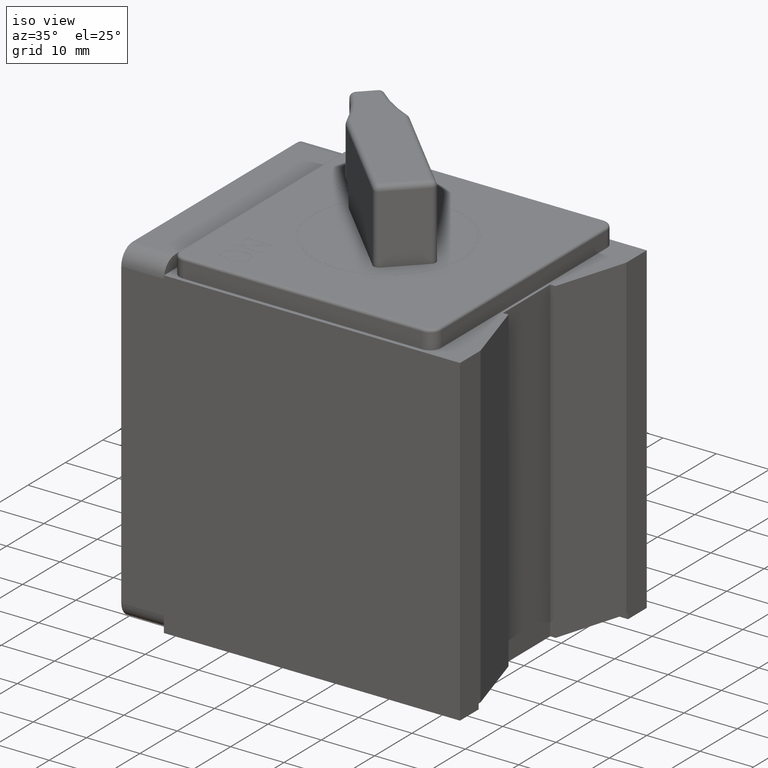
[diagram: clean part render]
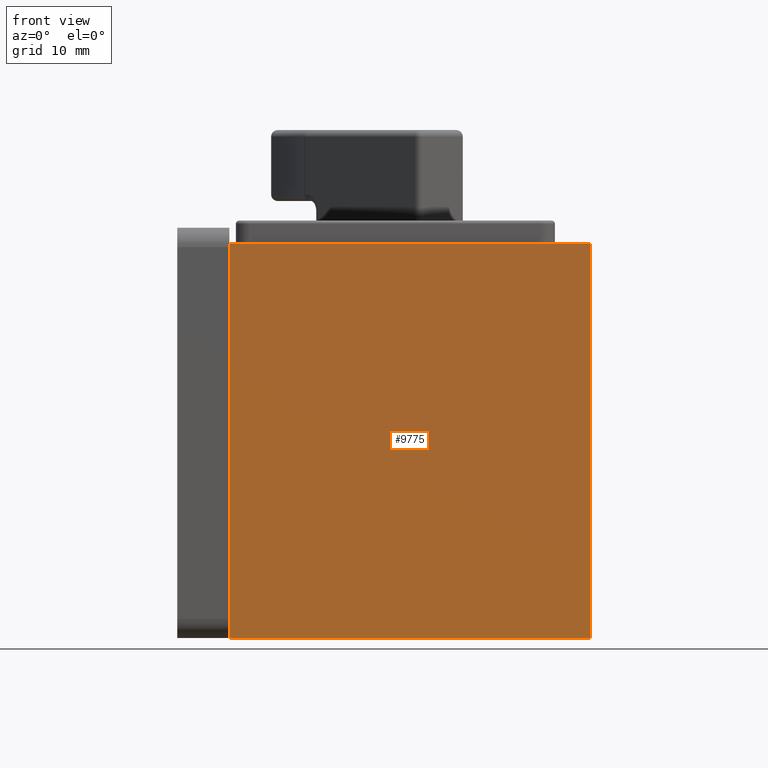
[diagram: tour spotlight — one face highlighted and labeled with its STEP entity id]
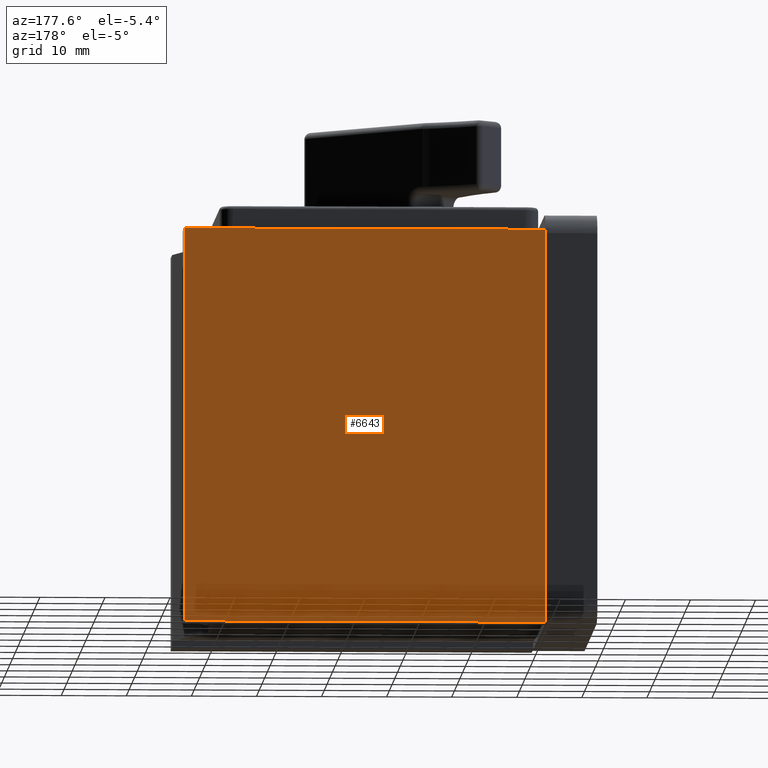
[diagram: tour spotlight — one face highlighted and labeled with its STEP entity id]
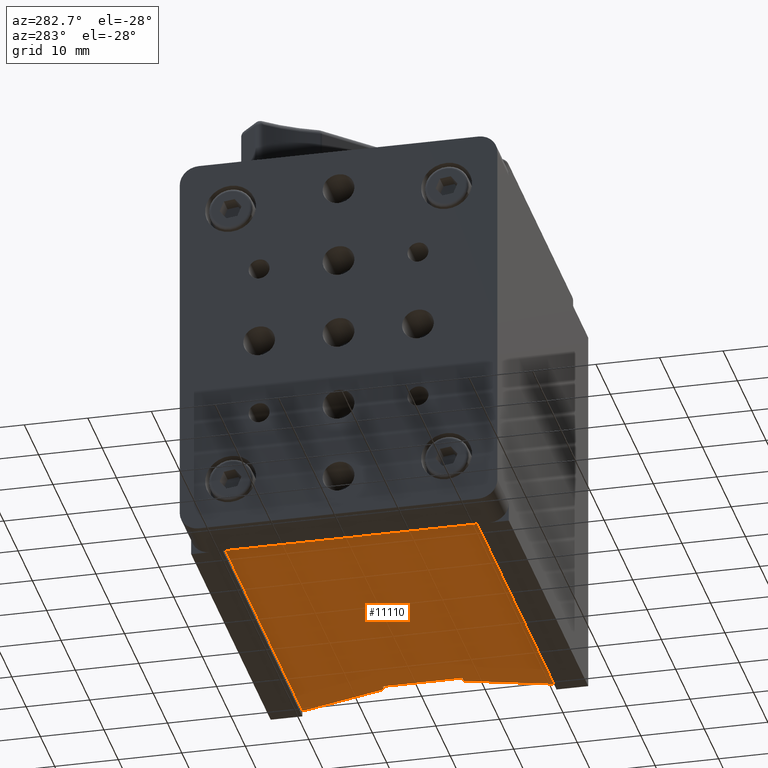
[diagram: tour spotlight — one face highlighted and labeled with its STEP entity id]
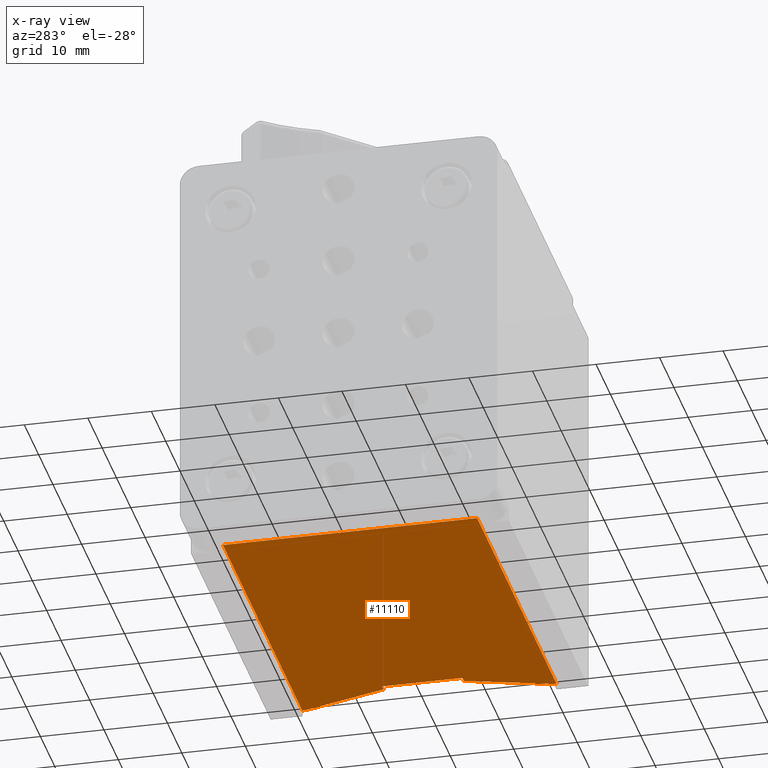
[diagram: x-ray of the same camera — body ghosted, this tour face saturated]
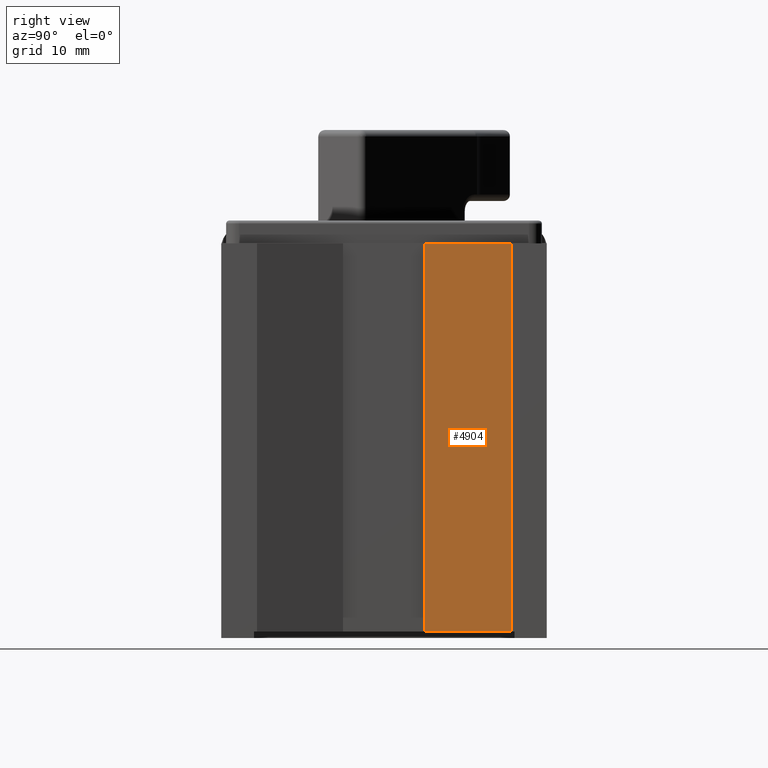
[diagram: tour spotlight — one face highlighted and labeled with its STEP entity id]
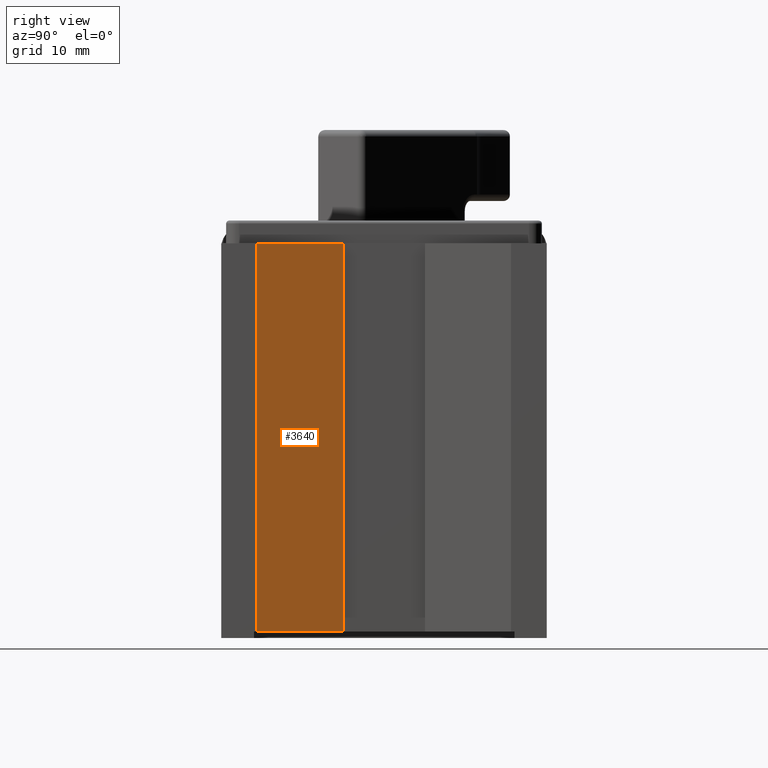
[diagram: tour spotlight — one face highlighted and labeled with its STEP entity id]
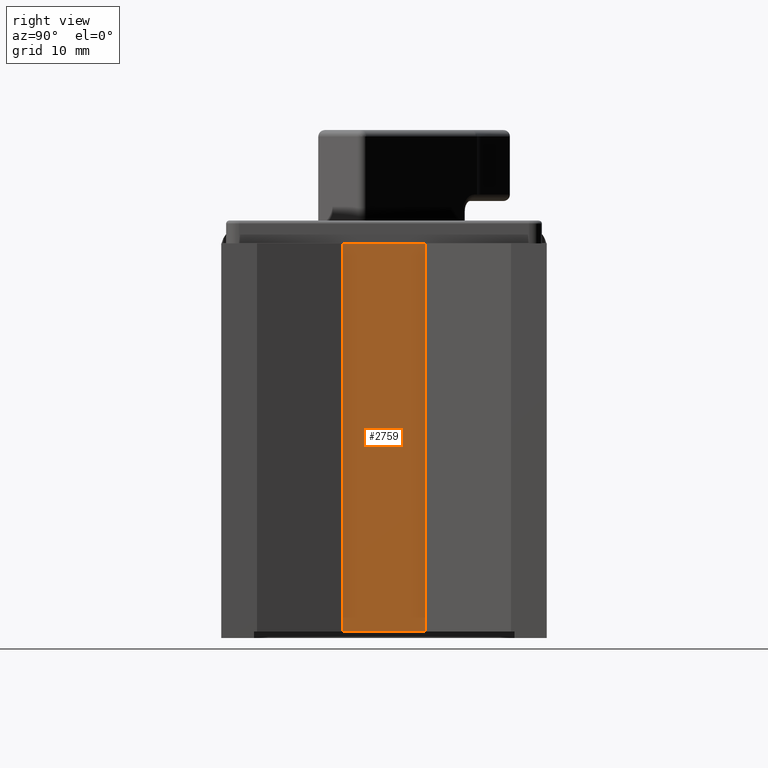
[diagram: tour spotlight — one face highlighted and labeled with its STEP entity id]
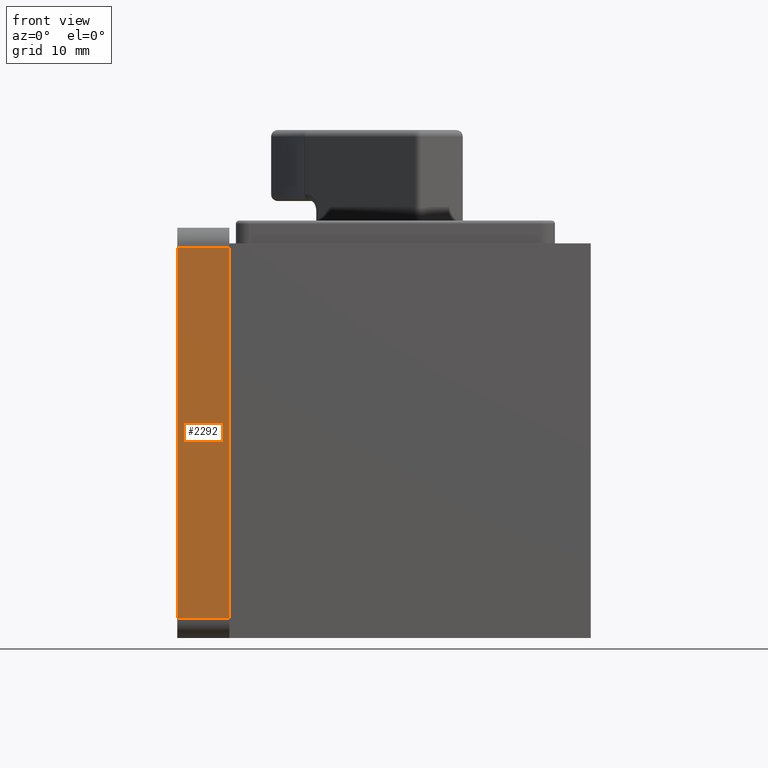
[diagram: tour spotlight — one face highlighted and labeled with its STEP entity id]
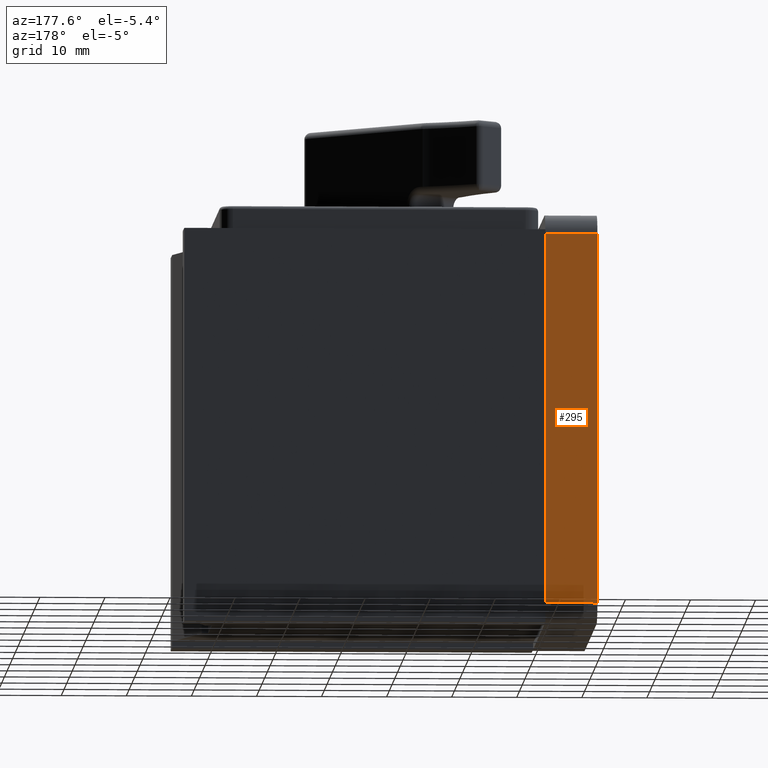
[diagram: tour spotlight — one face highlighted and labeled with its STEP entity id]
A machine part: a face-by-face anatomy tour. The part has 348 B-rep faces; the first image is the clean iso view, then the 8 largest visible faces are spotlighted one at a time (largest first), each with its STEP entity span.

Face 1 — front view, entity #9775. In plain terms, the highlighted planar face has unit normal (0, -1, 0).
Definition (entity closure, byte-faithful):
#983 = PLANE ( 'NONE',  #11136 ) ;
#1678 = ORIENTED_EDGE ( 'NONE', *, *, #5202, .T. ) ;
#2621 = EDGE_CURVE ( 'NONE', #11767, #10903, #9585, .T. ) ;
#3246 = CARTESIAN_POINT ( 'NONE',  ( 0.0000000000000000000, -25.00000000000004600, 29.10000000000000100 ) ) ;
#3420 = EDGE_CURVE ( 'NONE', #11767, #3839, #8044, .T. ) ;
#3696 = CARTESIAN_POINT ( 'NONE',  ( 55.50000000000000000, -25.00000000000003600, -31.50000000000000000 ) ) ;
#3833 = DIRECTION ( 'NONE',  ( 0.0000000000000000000, 0.0000000000000000000, 1.000000000000000000 ) ) ;
#3839 = VERTEX_POINT ( 'NONE', #3696 ) ;
#4001 = ORIENTED_EDGE ( 'NONE', *, *, #2621, .F. ) ;
#4327 = DIRECTION ( 'NONE',  ( 1.000000000000000000, 1.875376730785737500E-016, 0.0000000000000000000 ) ) ;
#4729 = ORIENTED_EDGE ( 'NONE', *, *, #7600, .F. ) ;
#4815 = CARTESIAN_POINT ( 'NONE',  ( 0.0000000000000000000, -25.00000000000004600, -31.50000000000000000 ) ) ;
#4826 = VECTOR ( 'NONE', #4327, 1000.000000000000000 ) ;
#4881 = DIRECTION ( 'NONE',  ( 1.875376730785737700E-016, -1.000000000000000000, 0.0000000000000000000 ) ) ;
#5202 = EDGE_CURVE ( 'NONE', #3839, #7975, #7538, .T. ) ;
#6095 = FACE_OUTER_BOUND ( 'NONE', #9111, .T. ) ;
#6920 = CARTESIAN_POINT ( 'NONE',  ( 0.0000000000000000000, -25.00000000000004600, -31.50000000000000000 ) ) ;
#6993 = DIRECTION ( 'NONE',  ( 1.000000000000000000, 1.875376730785737700E-016, 0.0000000000000000000 ) ) ;
#7070 = CARTESIAN_POINT ( 'NONE',  ( 55.50000000000000000, -25.00000000000003600, 29.10000000000000100 ) ) ;
#7331 = LINE ( 'NONE', #3246, #9610 ) ;
#7538 = LINE ( 'NONE', #12170, #9076 ) ;
#7600 = EDGE_CURVE ( 'NONE', #10903, #7975, #7331, .T. ) ;
#7975 = VERTEX_POINT ( 'NONE', #7070 ) ;
#8044 = LINE ( 'NONE', #8222, #4826 ) ;
#8092 = CARTESIAN_POINT ( 'NONE',  ( 0.0000000000000000000, -25.00000000000004600, 29.10000000000000100 ) ) ;
#8222 = CARTESIAN_POINT ( 'NONE',  ( 0.0000000000000000000, -25.00000000000004600, -31.50000000000000000 ) ) ;
#9051 = DIRECTION ( 'NONE',  ( 1.000000000000000000, 1.875376730785737500E-016, 0.0000000000000000000 ) ) ;
#9076 = VECTOR ( 'NONE', #9378, 1000.000000000000000 ) ;
#9111 = EDGE_LOOP ( 'NONE', ( #4729, #4001, #9363, #1678 ) ) ;
#9363 = ORIENTED_EDGE ( 'NONE', *, *, #3420, .T. ) ;
#9378 = DIRECTION ( 'NONE',  ( 0.0000000000000000000, 0.0000000000000000000, 1.000000000000000000 ) ) ;
#9585 = LINE ( 'NONE', #6920, #10943 ) ;
#9610 = VECTOR ( 'NONE', #9051, 1000.000000000000000 ) ;
#9753 = CARTESIAN_POINT ( 'NONE',  ( 0.0000000000000000000, -25.00000000000004600, -31.50000000000000000 ) ) ;
#9775 = ADVANCED_FACE ( 'NONE', ( #6095 ), #983, .T. ) ;
#10903 = VERTEX_POINT ( 'NONE', #8092 ) ;
#10943 = VECTOR ( 'NONE', #3833, 1000.000000000000000 ) ;
#11136 = AXIS2_PLACEMENT_3D ( 'NONE', #9753, #4881, #6993 ) ;
#11767 = VERTEX_POINT ( 'NONE', #4815 ) ;
#12170 = CARTESIAN_POINT ( 'NONE',  ( 55.50000000000000000, -25.00000000000003600, -31.50000000000000000 ) ) ;

Face 2 — auxiliary view, entity #6643. In plain terms, the highlighted planar face has unit normal (-0, 1, 0).
Definition (entity closure, byte-faithful):
#17 = FACE_OUTER_BOUND ( 'NONE', #7519, .T. ) ;
#194 = DIRECTION ( 'NONE',  ( -1.000000000000000000, -6.251255769285791600E-017, 0.0000000000000000000 ) ) ;
#553 = VERTEX_POINT ( 'NONE', #4783 ) ;
#583 = LINE ( 'NONE', #4284, #10676 ) ;
#709 = EDGE_CURVE ( 'NONE', #8605, #4701, #9172, .T. ) ;
#1427 = VECTOR ( 'NONE', #10472, 1000.000000000000000 ) ;
#1522 = PLANE ( 'NONE',  #3382 ) ;
#2314 = CARTESIAN_POINT ( 'NONE',  ( -6.938893903907228400E-015, 25.00000000000001100, 29.10000000000000100 ) ) ;
#2580 = CARTESIAN_POINT ( 'NONE',  ( 55.49999999999999300, 25.00000000000001400, 29.10000000000000100 ) ) ;
#3382 = AXIS2_PLACEMENT_3D ( 'NONE', #5605, #8383, #12277 ) ;
#3398 = DIRECTION ( 'NONE',  ( 0.0000000000000000000, 0.0000000000000000000, 1.000000000000000000 ) ) ;
#3969 = VECTOR ( 'NONE', #194, 1000.000000000000000 ) ;
#4187 = VECTOR ( 'NONE', #8952, 1000.000000000000000 ) ;
#4284 = CARTESIAN_POINT ( 'NONE',  ( -6.938893903907228400E-015, 25.00000000000001100, -31.50000000000000000 ) ) ;
#4630 = LINE ( 'NONE', #9968, #4187 ) ;
#4664 = EDGE_CURVE ( 'NONE', #553, #5367, #9249, .T. ) ;
#4701 = VERTEX_POINT ( 'NONE', #8542 ) ;
#4783 = CARTESIAN_POINT ( 'NONE',  ( 55.49999999999999300, 25.00000000000001400, -31.50000000000000000 ) ) ;
#5087 = EDGE_CURVE ( 'NONE', #553, #8605, #4630, .T. ) ;
#5367 = VERTEX_POINT ( 'NONE', #8898 ) ;
#5605 = CARTESIAN_POINT ( 'NONE',  ( -6.938893903907228400E-015, 25.00000000000001100, -31.50000000000000000 ) ) ;
#5804 = ORIENTED_EDGE ( 'NONE', *, *, #709, .F. ) ;
#6643 = ADVANCED_FACE ( 'NONE', ( #17 ), #1522, .T. ) ;
#7519 = EDGE_LOOP ( 'NONE', ( #5804, #11712, #9429, #9117 ) ) ;
#8383 = DIRECTION ( 'NONE',  ( -6.251255769285792800E-017, 1.000000000000000000, 0.0000000000000000000 ) ) ;
#8542 = CARTESIAN_POINT ( 'NONE',  ( -6.938893903907228400E-015, 25.00000000000001100, 29.10000000000000100 ) ) ;
#8605 = VERTEX_POINT ( 'NONE', #2580 ) ;
#8898 = CARTESIAN_POINT ( 'NONE',  ( -6.938893903907228400E-015, 25.00000000000001100, -31.50000000000000000 ) ) ;
#8952 = DIRECTION ( 'NONE',  ( 0.0000000000000000000, 0.0000000000000000000, 1.000000000000000000 ) ) ;
#9117 = ORIENTED_EDGE ( 'NONE', *, *, #9436, .T. ) ;
#9172 = LINE ( 'NONE', #2314, #3969 ) ;
#9249 = LINE ( 'NONE', #9404, #1427 ) ;
#9404 = CARTESIAN_POINT ( 'NONE',  ( -6.938893903907228400E-015, 25.00000000000001100, -31.50000000000000000 ) ) ;
#9429 = ORIENTED_EDGE ( 'NONE', *, *, #4664, .T. ) ;
#9436 = EDGE_CURVE ( 'NONE', #5367, #4701, #583, .T. ) ;
#9968 = CARTESIAN_POINT ( 'NONE',  ( 55.49999999999999300, 25.00000000000001400, -31.50000000000000000 ) ) ;
#10472 = DIRECTION ( 'NONE',  ( -1.000000000000000000, -6.251255769285791600E-017, 0.0000000000000000000 ) ) ;
#10676 = VECTOR ( 'NONE', #3398, 1000.000000000000000 ) ;
#11712 = ORIENTED_EDGE ( 'NONE', *, *, #5087, .F. ) ;
#12277 = DIRECTION ( 'NONE',  ( -1.000000000000000000, -6.251255769285792800E-017, 0.0000000000000000000 ) ) ;

Face 3 — auxiliary view, entity #11110. An x-ray twin of the same camera follows (body ghosted, this face saturated) — the face is partly hidden behind the body. In plain terms, the highlighted planar face has unit normal (0, -0, 1).
Definition (entity closure, byte-faithful):
#166 = CARTESIAN_POINT ( 'NONE',  ( 50.50000000000000000, -6.299999999999983800, -30.50000000000000700 ) ) ;
#243 = CARTESIAN_POINT ( 'NONE',  ( 51.50000000000000700, 6.300000000000016700, -30.50000000000000700 ) ) ;
#449 = CARTESIAN_POINT ( 'NONE',  ( 50.50000000000000000, 6.300000000000016700, -30.50000000000000700 ) ) ;
#526 = DIRECTION ( 'NONE',  ( 1.000000000000000000, 0.0000000000000000000, 0.0000000000000000000 ) ) ;
#609 = DIRECTION ( 'NONE',  ( 0.0000000000000000000, -0.0000000000000000000, 1.000000000000000000 ) ) ;
#626 = VERTEX_POINT ( 'NONE', #8840 ) ;
#1057 = VECTOR ( 'NONE', #10049, 1000.000000000000000 ) ;
#1124 = VECTOR ( 'NONE', #9825, 1000.000000000000000 ) ;
#1148 = CARTESIAN_POINT ( 'NONE',  ( 50.50000000000000000, 6.300000000000016700, -30.50000000000000700 ) ) ;
#1423 = EDGE_CURVE ( 'NONE', #6075, #6256, #6254, .T. ) ;
#1459 = EDGE_CURVE ( 'NONE', #626, #6778, #9321, .T. ) ;
#1653 = LINE ( 'NONE', #5743, #12037 ) ;
#1660 = ORIENTED_EDGE ( 'NONE', *, *, #6001, .T. ) ;
#1968 = CARTESIAN_POINT ( 'NONE',  ( 55.50000000000000000, 20.00000000000002100, -30.50000000000000700 ) ) ;
#2222 = ORIENTED_EDGE ( 'NONE', *, *, #1423, .T. ) ;
#2393 = CARTESIAN_POINT ( 'NONE',  ( 55.50000000000000000, -19.99999999999997900, -30.50000000000000700 ) ) ;
#2805 = CARTESIAN_POINT ( 'NONE',  ( 55.50000000000000000, -19.99999999999997900, -30.50000000000000700 ) ) ;
#3083 = CARTESIAN_POINT ( 'NONE',  ( 55.50000000000000000, -19.99999999999997900, -30.50000000000000700 ) ) ;
#3124 = DIRECTION ( 'NONE',  ( -1.000000000000000000, 0.0000000000000000000, 0.0000000000000000000 ) ) ;
#3304 = VECTOR ( 'NONE', #526, 1000.000000000000000 ) ;
#4161 = EDGE_CURVE ( 'NONE', #6256, #9767, #10623, .T. ) ;
#4190 = DIRECTION ( 'NONE',  ( 0.0000000000000000000, -1.000000000000000000, 0.0000000000000000000 ) ) ;
#4421 = CARTESIAN_POINT ( 'NONE',  ( 55.50000000000000000, -19.99999999999997900, -30.50000000000000700 ) ) ;
#4474 = ORIENTED_EDGE ( 'NONE', *, *, #11156, .T. ) ;
#4658 = DIRECTION ( 'NONE',  ( 0.0000000000000000000, 1.000000000000000000, 0.0000000000000000000 ) ) ;
#5360 = CARTESIAN_POINT ( 'NONE',  ( 51.50000000000000700, -6.299999999999983800, -30.50000000000000700 ) ) ;
#5422 = CARTESIAN_POINT ( 'NONE',  ( -6.938893903907228400E-015, 20.00000000000001400, -30.50000000000000700 ) ) ;
#5743 = CARTESIAN_POINT ( 'NONE',  ( 51.50000000000000700, 6.300000000000016700, -30.50000000000000700 ) ) ;
#6001 = EDGE_CURVE ( 'NONE', #8316, #8488, #10587, .T. ) ;
#6075 = VERTEX_POINT ( 'NONE', #243 ) ;
#6109 = VECTOR ( 'NONE', #3124, 1000.000000000000000 ) ;
#6254 = LINE ( 'NONE', #1148, #6109 ) ;
#6256 = VERTEX_POINT ( 'NONE', #449 ) ;
#6473 = CARTESIAN_POINT ( 'NONE',  ( -6.938893903907228400E-015, -19.99999999999998600, -30.50000000000000700 ) ) ;
#6699 = AXIS2_PLACEMENT_3D ( 'NONE', #4421, #609, #10365 ) ;
#6730 = VECTOR ( 'NONE', #6935, 1000.000000000000000 ) ;
#6778 = VERTEX_POINT ( 'NONE', #1968 ) ;
#6798 = EDGE_CURVE ( 'NONE', #12506, #11535, #7506, .T. ) ;
#6935 = DIRECTION ( 'NONE',  ( 0.0000000000000000000, 1.000000000000000000, 0.0000000000000000000 ) ) ;
#6967 = ORIENTED_EDGE ( 'NONE', *, *, #11065, .F. ) ;
#7214 = VECTOR ( 'NONE', #4658, 1000.000000000000000 ) ;
#7232 = ORIENTED_EDGE ( 'NONE', *, *, #9570, .T. ) ;
#7437 = LINE ( 'NONE', #10389, #11080 ) ;
#7506 = LINE ( 'NONE', #10524, #7214 ) ;
#7677 = CARTESIAN_POINT ( 'NONE',  ( 55.50000000000000000, -19.50000000000004600, -30.50000000000000700 ) ) ;
#7816 = CARTESIAN_POINT ( 'NONE',  ( 55.50000000000000000, -19.50000000000004600, -30.50000000000000700 ) ) ;
#8316 = VERTEX_POINT ( 'NONE', #10138 ) ;
#8348 = EDGE_CURVE ( 'NONE', #9004, #12506, #10238, .T. ) ;
#8488 = VERTEX_POINT ( 'NONE', #7677 ) ;
#8505 = FACE_OUTER_BOUND ( 'NONE', #10891, .T. ) ;
#8601 = VECTOR ( 'NONE', #11823, 1000.000000000000200 ) ;
#8722 = ORIENTED_EDGE ( 'NONE', *, *, #8348, .T. ) ;
#8777 = CARTESIAN_POINT ( 'NONE',  ( 50.50000000000000000, -6.299999999999983800, -30.50000000000000700 ) ) ;
#8840 = CARTESIAN_POINT ( 'NONE',  ( 55.50000000000000000, 19.50000000000007100, -30.50000000000000700 ) ) ;
#8914 = ORIENTED_EDGE ( 'NONE', *, *, #4161, .T. ) ;
#9004 = VERTEX_POINT ( 'NONE', #11992 ) ;
#9321 = LINE ( 'NONE', #3083, #6730 ) ;
#9570 = EDGE_CURVE ( 'NONE', #626, #6075, #1653, .T. ) ;
#9767 = VERTEX_POINT ( 'NONE', #8777 ) ;
#9825 = DIRECTION ( 'NONE',  ( 0.0000000000000000000, 1.000000000000000000, 0.0000000000000000000 ) ) ;
#9894 = ORIENTED_EDGE ( 'NONE', *, *, #1459, .F. ) ;
#10005 = VECTOR ( 'NONE', #4190, 1000.000000000000000 ) ;
#10049 = DIRECTION ( 'NONE',  ( -1.000000000000000000, -1.387778780781444200E-016, 0.0000000000000000000 ) ) ;
#10138 = CARTESIAN_POINT ( 'NONE',  ( 51.50000000000000700, -6.299999999999984700, -30.50000000000000700 ) ) ;
#10238 = LINE ( 'NONE', #2393, #1057 ) ;
#10365 = DIRECTION ( 'NONE',  ( 0.0000000000000000000, 1.000000000000000000, 0.0000000000000000000 ) ) ;
#10389 = CARTESIAN_POINT ( 'NONE',  ( 55.50000000000000000, 20.00000000000002100, -30.50000000000000700 ) ) ;
#10443 = ORIENTED_EDGE ( 'NONE', *, *, #12649, .F. ) ;
#10524 = CARTESIAN_POINT ( 'NONE',  ( -6.938893903907228400E-015, -19.99999999999998600, -30.50000000000000700 ) ) ;
#10531 = DIRECTION ( 'NONE',  ( -0.2900073952828694500, -0.9570244044334739200, 0.0000000000000000000 ) ) ;
#10587 = LINE ( 'NONE', #7816, #8601 ) ;
#10623 = LINE ( 'NONE', #166, #10005 ) ;
#10891 = EDGE_LOOP ( 'NONE', ( #7232, #2222, #8914, #4474, #1660, #10443, #8722, #11396, #6967, #9894 ) ) ;
#11065 = EDGE_CURVE ( 'NONE', #6778, #11535, #7437, .T. ) ;
#11080 = VECTOR ( 'NONE', #11368, 1000.000000000000000 ) ;
#11110 = ADVANCED_FACE ( 'NONE', ( #8505 ), #12254, .F. ) ;
#11156 = EDGE_CURVE ( 'NONE', #9767, #8316, #12140, .T. ) ;
#11368 = DIRECTION ( 'NONE',  ( -1.000000000000000000, -1.387778780781444200E-016, 0.0000000000000000000 ) ) ;
#11396 = ORIENTED_EDGE ( 'NONE', *, *, #6798, .T. ) ;
#11535 = VERTEX_POINT ( 'NONE', #5422 ) ;
#11820 = LINE ( 'NONE', #2805, #1124 ) ;
#11823 = DIRECTION ( 'NONE',  ( 0.2900073952828692800, -0.9570244044334739200, 0.0000000000000000000 ) ) ;
#11992 = CARTESIAN_POINT ( 'NONE',  ( 55.50000000000000000, -19.99999999999997900, -30.50000000000000700 ) ) ;
#12037 = VECTOR ( 'NONE', #10531, 1000.000000000000100 ) ;
#12140 = LINE ( 'NONE', #5360, #3304 ) ;
#12254 = PLANE ( 'NONE',  #6699 ) ;
#12506 = VERTEX_POINT ( 'NONE', #6473 ) ;
#12649 = EDGE_CURVE ( 'NONE', #9004, #8488, #11820, .T. ) ;

Face 4 — right view, entity #4904. In plain terms, the highlighted planar face has unit normal (0.957, -0.29, 0).
Definition (entity closure, byte-faithful):
#43 = LINE ( 'NONE', #1290, #7095 ) ;
#243 = CARTESIAN_POINT ( 'NONE',  ( 51.50000000000000700, 6.300000000000016700, -30.50000000000000700 ) ) ;
#259 = DIRECTION ( 'NONE',  ( 0.0000000000000000000, 0.0000000000000000000, 1.000000000000000000 ) ) ;
#626 = VERTEX_POINT ( 'NONE', #8840 ) ;
#1290 = CARTESIAN_POINT ( 'NONE',  ( 51.50000000000000700, 6.300000000000016700, -31.50000000000000000 ) ) ;
#1653 = LINE ( 'NONE', #5743, #12037 ) ;
#2261 = DIRECTION ( 'NONE',  ( 0.2900073952828694000, 0.9570244044334739200, 0.0000000000000000000 ) ) ;
#2296 = VECTOR ( 'NONE', #259, 1000.000000000000000 ) ;
#3064 = ORIENTED_EDGE ( 'NONE', *, *, #9570, .F. ) ;
#3198 = LINE ( 'NONE', #10013, #6106 ) ;
#3258 = VERTEX_POINT ( 'NONE', #9469 ) ;
#3434 = CARTESIAN_POINT ( 'NONE',  ( 55.50000000000000000, 19.50000000000007100, 29.10000000000000100 ) ) ;
#3917 = CARTESIAN_POINT ( 'NONE',  ( 51.50000000000000700, 6.300000000000016700, -31.50000000000000000 ) ) ;
#4071 = ORIENTED_EDGE ( 'NONE', *, *, #8900, .T. ) ;
#4331 = DIRECTION ( 'NONE',  ( 0.0000000000000000000, 0.0000000000000000000, 1.000000000000000000 ) ) ;
#4904 = ADVANCED_FACE ( 'NONE', ( #7407 ), #11589, .T. ) ;
#5019 = CARTESIAN_POINT ( 'NONE',  ( 55.50000000000000000, 19.50000000000007100, -31.50000000000000000 ) ) ;
#5108 = EDGE_CURVE ( 'NONE', #6075, #3258, #43, .T. ) ;
#5743 = CARTESIAN_POINT ( 'NONE',  ( 51.50000000000000700, 6.300000000000016700, -30.50000000000000700 ) ) ;
#5848 = DIRECTION ( 'NONE',  ( 0.2900073952828694500, 0.9570244044334739200, 0.0000000000000000000 ) ) ;
#6075 = VERTEX_POINT ( 'NONE', #243 ) ;
#6106 = VECTOR ( 'NONE', #2261, 1000.000000000000200 ) ;
#6874 = DIRECTION ( 'NONE',  ( 0.9570244044334740300, -0.2900073952828695100, 0.0000000000000000000 ) ) ;
#7079 = ORIENTED_EDGE ( 'NONE', *, *, #5108, .F. ) ;
#7095 = VECTOR ( 'NONE', #4331, 1000.000000000000000 ) ;
#7175 = ORIENTED_EDGE ( 'NONE', *, *, #9337, .F. ) ;
#7407 = FACE_OUTER_BOUND ( 'NONE', #9440, .T. ) ;
#8840 = CARTESIAN_POINT ( 'NONE',  ( 55.50000000000000000, 19.50000000000007100, -30.50000000000000700 ) ) ;
#8900 = EDGE_CURVE ( 'NONE', #626, #10022, #12045, .T. ) ;
#9337 = EDGE_CURVE ( 'NONE', #3258, #10022, #3198, .T. ) ;
#9440 = EDGE_LOOP ( 'NONE', ( #3064, #4071, #7175, #7079 ) ) ;
#9469 = CARTESIAN_POINT ( 'NONE',  ( 51.50000000000000700, 6.300000000000016700, 29.10000000000000100 ) ) ;
#9570 = EDGE_CURVE ( 'NONE', #626, #6075, #1653, .T. ) ;
#10013 = CARTESIAN_POINT ( 'NONE',  ( 51.50000000000000700, 6.300000000000016700, 29.10000000000000100 ) ) ;
#10022 = VERTEX_POINT ( 'NONE', #3434 ) ;
#10439 = AXIS2_PLACEMENT_3D ( 'NONE', #3917, #6874, #5848 ) ;
#10531 = DIRECTION ( 'NONE',  ( -0.2900073952828694500, -0.9570244044334739200, 0.0000000000000000000 ) ) ;
#11589 = PLANE ( 'NONE',  #10439 ) ;
#12037 = VECTOR ( 'NONE', #10531, 1000.000000000000100 ) ;
#12045 = LINE ( 'NONE', #5019, #2296 ) ;

Face 5 — right view, entity #3640. In plain terms, the highlighted planar face has unit normal (0.957, 0.29, 0).
Definition (entity closure, byte-faithful):
#483 = CARTESIAN_POINT ( 'NONE',  ( 51.50000000000000700, -6.299999999999983800, 29.10000000000000100 ) ) ;
#624 = VECTOR ( 'NONE', #7608, 1000.000000000000100 ) ;
#757 = CARTESIAN_POINT ( 'NONE',  ( 55.50000000000000000, -19.50000000000004600, 29.10000000000000100 ) ) ;
#1650 = DIRECTION ( 'NONE',  ( 0.0000000000000000000, 0.0000000000000000000, 1.000000000000000000 ) ) ;
#1689 = DIRECTION ( 'NONE',  ( 0.0000000000000000000, 0.0000000000000000000, 1.000000000000000000 ) ) ;
#1933 = CARTESIAN_POINT ( 'NONE',  ( 55.50000000000000000, -19.50000000000004600, -31.50000000000000000 ) ) ;
#3158 = VECTOR ( 'NONE', #1689, 1000.000000000000000 ) ;
#3640 = ADVANCED_FACE ( 'NONE', ( #8650 ), #12621, .T. ) ;
#4968 = LINE ( 'NONE', #6543, #9100 ) ;
#5394 = ORIENTED_EDGE ( 'NONE', *, *, #6001, .F. ) ;
#5413 = CARTESIAN_POINT ( 'NONE',  ( 55.50000000000000000, -19.50000000000004600, 29.10000000000000100 ) ) ;
#5906 = ORIENTED_EDGE ( 'NONE', *, *, #11611, .F. ) ;
#5922 = DIRECTION ( 'NONE',  ( 0.9570244044334740300, 0.2900073952828693400, 0.0000000000000000000 ) ) ;
#6001 = EDGE_CURVE ( 'NONE', #8316, #8488, #10587, .T. ) ;
#6073 = LINE ( 'NONE', #10541, #3158 ) ;
#6543 = CARTESIAN_POINT ( 'NONE',  ( 55.50000000000000000, -19.50000000000004600, -31.50000000000000000 ) ) ;
#6890 = EDGE_CURVE ( 'NONE', #7169, #11928, #9361, .T. ) ;
#7169 = VERTEX_POINT ( 'NONE', #5413 ) ;
#7608 = DIRECTION ( 'NONE',  ( -0.2900073952828693400, 0.9570244044334739200, 0.0000000000000000000 ) ) ;
#7677 = CARTESIAN_POINT ( 'NONE',  ( 55.50000000000000000, -19.50000000000004600, -30.50000000000000700 ) ) ;
#7816 = CARTESIAN_POINT ( 'NONE',  ( 55.50000000000000000, -19.50000000000004600, -30.50000000000000700 ) ) ;
#8316 = VERTEX_POINT ( 'NONE', #10138 ) ;
#8488 = VERTEX_POINT ( 'NONE', #7677 ) ;
#8601 = VECTOR ( 'NONE', #11823, 1000.000000000000200 ) ;
#8650 = FACE_OUTER_BOUND ( 'NONE', #10440, .T. ) ;
#8718 = DIRECTION ( 'NONE',  ( -0.2900073952828692800, 0.9570244044334739200, 0.0000000000000000000 ) ) ;
#8796 = AXIS2_PLACEMENT_3D ( 'NONE', #1933, #5922, #8718 ) ;
#9100 = VECTOR ( 'NONE', #1650, 1000.000000000000000 ) ;
#9361 = LINE ( 'NONE', #757, #624 ) ;
#9479 = ORIENTED_EDGE ( 'NONE', *, *, #6890, .F. ) ;
#10138 = CARTESIAN_POINT ( 'NONE',  ( 51.50000000000000700, -6.299999999999984700, -30.50000000000000700 ) ) ;
#10440 = EDGE_LOOP ( 'NONE', ( #5394, #12626, #9479, #5906 ) ) ;
#10541 = CARTESIAN_POINT ( 'NONE',  ( 51.50000000000000700, -6.299999999999983800, -31.50000000000000000 ) ) ;
#10587 = LINE ( 'NONE', #7816, #8601 ) ;
#10707 = EDGE_CURVE ( 'NONE', #8316, #11928, #6073, .T. ) ;
#11611 = EDGE_CURVE ( 'NONE', #8488, #7169, #4968, .T. ) ;
#11823 = DIRECTION ( 'NONE',  ( 0.2900073952828692800, -0.9570244044334739200, 0.0000000000000000000 ) ) ;
#11928 = VERTEX_POINT ( 'NONE', #483 ) ;
#12621 = PLANE ( 'NONE',  #8796 ) ;
#12626 = ORIENTED_EDGE ( 'NONE', *, *, #10707, .T. ) ;

Face 6 — right view, entity #2759. In plain terms, the highlighted planar face has unit normal (1, 0, 0).
Definition (entity closure, byte-faithful):
#113 = VECTOR ( 'NONE', #620, 1000.000000000000000 ) ;
#166 = CARTESIAN_POINT ( 'NONE',  ( 50.50000000000000000, -6.299999999999983800, -30.50000000000000700 ) ) ;
#285 = AXIS2_PLACEMENT_3D ( 'NONE', #4285, #396, #8228 ) ;
#305 = EDGE_LOOP ( 'NONE', ( #6186, #8320, #3285, #5277 ) ) ;
#396 = DIRECTION ( 'NONE',  ( 1.000000000000000000, 0.0000000000000000000, 0.0000000000000000000 ) ) ;
#449 = CARTESIAN_POINT ( 'NONE',  ( 50.50000000000000000, 6.300000000000016700, -30.50000000000000700 ) ) ;
#522 = PLANE ( 'NONE',  #285 ) ;
#620 = DIRECTION ( 'NONE',  ( 0.0000000000000000000, 0.0000000000000000000, 1.000000000000000000 ) ) ;
#1238 = EDGE_CURVE ( 'NONE', #6256, #9517, #7788, .T. ) ;
#2217 = CARTESIAN_POINT ( 'NONE',  ( 50.50000000000000000, -6.299999999999983800, 29.10000000000000100 ) ) ;
#2301 = EDGE_CURVE ( 'NONE', #9767, #11670, #11873, .T. ) ;
#2759 = ADVANCED_FACE ( 'NONE', ( #3932 ), #522, .T. ) ;
#3193 = DIRECTION ( 'NONE',  ( 0.0000000000000000000, 1.000000000000000000, 0.0000000000000000000 ) ) ;
#3285 = ORIENTED_EDGE ( 'NONE', *, *, #10970, .F. ) ;
#3932 = FACE_OUTER_BOUND ( 'NONE', #305, .T. ) ;
#4161 = EDGE_CURVE ( 'NONE', #6256, #9767, #10623, .T. ) ;
#4190 = DIRECTION ( 'NONE',  ( 0.0000000000000000000, -1.000000000000000000, 0.0000000000000000000 ) ) ;
#4285 = CARTESIAN_POINT ( 'NONE',  ( 50.50000000000000000, -6.299999999999983800, -31.50000000000000000 ) ) ;
#5189 = VECTOR ( 'NONE', #6089, 1000.000000000000000 ) ;
#5277 = ORIENTED_EDGE ( 'NONE', *, *, #2301, .F. ) ;
#6089 = DIRECTION ( 'NONE',  ( 0.0000000000000000000, 0.0000000000000000000, 1.000000000000000000 ) ) ;
#6186 = ORIENTED_EDGE ( 'NONE', *, *, #4161, .F. ) ;
#6256 = VERTEX_POINT ( 'NONE', #449 ) ;
#7286 = VECTOR ( 'NONE', #3193, 1000.000000000000000 ) ;
#7335 = CARTESIAN_POINT ( 'NONE',  ( 50.50000000000000000, 6.300000000000016700, 29.10000000000000100 ) ) ;
#7788 = LINE ( 'NONE', #11100, #5189 ) ;
#8228 = DIRECTION ( 'NONE',  ( 0.0000000000000000000, 0.0000000000000000000, -1.000000000000000000 ) ) ;
#8320 = ORIENTED_EDGE ( 'NONE', *, *, #1238, .T. ) ;
#8777 = CARTESIAN_POINT ( 'NONE',  ( 50.50000000000000000, -6.299999999999983800, -30.50000000000000700 ) ) ;
#9517 = VERTEX_POINT ( 'NONE', #7335 ) ;
#9767 = VERTEX_POINT ( 'NONE', #8777 ) ;
#10005 = VECTOR ( 'NONE', #4190, 1000.000000000000000 ) ;
#10623 = LINE ( 'NONE', #166, #10005 ) ;
#10626 = CARTESIAN_POINT ( 'NONE',  ( 50.50000000000000000, -6.299999999999983800, 29.10000000000000100 ) ) ;
#10970 = EDGE_CURVE ( 'NONE', #11670, #9517, #12439, .T. ) ;
#11100 = CARTESIAN_POINT ( 'NONE',  ( 50.50000000000000000, 6.300000000000016700, -31.50000000000000000 ) ) ;
#11300 = CARTESIAN_POINT ( 'NONE',  ( 50.50000000000000000, -6.299999999999983800, -31.50000000000000000 ) ) ;
#11670 = VERTEX_POINT ( 'NONE', #10626 ) ;
#11873 = LINE ( 'NONE', #11300, #113 ) ;
#12439 = LINE ( 'NONE', #2217, #7286 ) ;

Face 7 — front view, entity #2292. In plain terms, the highlighted planar face has unit normal (0, 1, 0).
Definition (entity closure, byte-faithful):
#306 = DIRECTION ( 'NONE',  ( -1.000000000000000000, -0.0000000000000000000, -0.0000000000000000000 ) ) ;
#363 = CARTESIAN_POINT ( 'NONE',  ( 0.0000000000000000000, -25.00000000000000000, 28.50000000000000400 ) ) ;
#708 = VERTEX_POINT ( 'NONE', #363 ) ;
#719 = EDGE_CURVE ( 'NONE', #753, #5096, #10843, .T. ) ;
#753 = VERTEX_POINT ( 'NONE', #5167 ) ;
#875 = CARTESIAN_POINT ( 'NONE',  ( -8.000000000000000000, -25.00000000000000000, 28.50000000000000400 ) ) ;
#998 = DIRECTION ( 'NONE',  ( 0.0000000000000000000, 0.0000000000000000000, 1.000000000000000000 ) ) ;
#2173 = ORIENTED_EDGE ( 'NONE', *, *, #719, .T. ) ;
#2272 = CARTESIAN_POINT ( 'NONE',  ( -8.000000000000000000, -25.00000000000000000, -28.50000000000000700 ) ) ;
#2292 = ADVANCED_FACE ( 'NONE', ( #4848 ), #6496, .F. ) ;
#2365 = ORIENTED_EDGE ( 'NONE', *, *, #5147, .T. ) ;
#2549 = EDGE_CURVE ( 'NONE', #753, #3606, #8664, .T. ) ;
#2976 = LINE ( 'NONE', #12047, #6639 ) ;
#3606 = VERTEX_POINT ( 'NONE', #875 ) ;
#3623 = CARTESIAN_POINT ( 'NONE',  ( -0.0000000000000000000, -25.00000000000000000, -31.50000000000000700 ) ) ;
#4265 = VECTOR ( 'NONE', #5251, 1000.000000000000000 ) ;
#4651 = EDGE_LOOP ( 'NONE', ( #6989, #2173, #6414, #2365 ) ) ;
#4819 = EDGE_CURVE ( 'NONE', #5096, #708, #10159, .T. ) ;
#4848 = FACE_OUTER_BOUND ( 'NONE', #4651, .T. ) ;
#5003 = VECTOR ( 'NONE', #998, 1000.000000000000000 ) ;
#5096 = VERTEX_POINT ( 'NONE', #10906 ) ;
#5147 = EDGE_CURVE ( 'NONE', #708, #3606, #2976, .T. ) ;
#5167 = CARTESIAN_POINT ( 'NONE',  ( -8.000000000000000000, -25.00000000000000000, -28.50000000000000700 ) ) ;
#5251 = DIRECTION ( 'NONE',  ( 1.000000000000000000, 0.0000000000000000000, 0.0000000000000000000 ) ) ;
#5550 = CARTESIAN_POINT ( 'NONE',  ( -8.000000000000000000, -25.00000000000000000, -31.50000000000000700 ) ) ;
#6414 = ORIENTED_EDGE ( 'NONE', *, *, #4819, .T. ) ;
#6496 = PLANE ( 'NONE',  #8239 ) ;
#6639 = VECTOR ( 'NONE', #306, 1000.000000000000000 ) ;
#6989 = ORIENTED_EDGE ( 'NONE', *, *, #2549, .F. ) ;
#7554 = VECTOR ( 'NONE', #8497, 1000.000000000000000 ) ;
#8239 = AXIS2_PLACEMENT_3D ( 'NONE', #5550, #9393, #10332 ) ;
#8497 = DIRECTION ( 'NONE',  ( 0.0000000000000000000, 0.0000000000000000000, 1.000000000000000000 ) ) ;
#8664 = LINE ( 'NONE', #12601, #5003 ) ;
#9393 = DIRECTION ( 'NONE',  ( 0.0000000000000000000, 1.000000000000000000, 0.0000000000000000000 ) ) ;
#10159 = LINE ( 'NONE', #3623, #7554 ) ;
#10332 = DIRECTION ( 'NONE',  ( -1.000000000000000000, 0.0000000000000000000, 0.0000000000000000000 ) ) ;
#10843 = LINE ( 'NONE', #2272, #4265 ) ;
#10906 = CARTESIAN_POINT ( 'NONE',  ( -0.0000000000000000000, -25.00000000000000000, -28.50000000000000700 ) ) ;
#12047 = CARTESIAN_POINT ( 'NONE',  ( -8.000000000000000000, -25.00000000000000000, 28.50000000000000400 ) ) ;
#12601 = CARTESIAN_POINT ( 'NONE',  ( -8.000000000000000000, -25.00000000000000000, -31.50000000000000700 ) ) ;

Face 8 — auxiliary view, entity #295. In plain terms, the highlighted planar face has unit normal (0, -1, 0).
Definition (entity closure, byte-faithful):
#295 = ADVANCED_FACE ( 'NONE', ( #5995 ), #8077, .F. ) ;
#1192 = DIRECTION ( 'NONE',  ( 0.0000000000000000000, -1.000000000000000000, 0.0000000000000000000 ) ) ;
#1347 = DIRECTION ( 'NONE',  ( 0.0000000000000000000, 0.0000000000000000000, -1.000000000000000000 ) ) ;
#1531 = EDGE_CURVE ( 'NONE', #3597, #6297, #5026, .T. ) ;
#1655 = ORIENTED_EDGE ( 'NONE', *, *, #11392, .T. ) ;
#2037 = VERTEX_POINT ( 'NONE', #4954 ) ;
#2200 = DIRECTION ( 'NONE',  ( 1.000000000000000000, 0.0000000000000000000, 0.0000000000000000000 ) ) ;
#2629 = CARTESIAN_POINT ( 'NONE',  ( -8.000000000000000000, 25.00000000000000000, -28.50000000000000700 ) ) ;
#2918 = EDGE_CURVE ( 'NONE', #2037, #6297, #12157, .T. ) ;
#3047 = CARTESIAN_POINT ( 'NONE',  ( -8.000000000000000000, 25.00000000000000000, 28.50000000000000400 ) ) ;
#3452 = LINE ( 'NONE', #3047, #5908 ) ;
#3542 = EDGE_LOOP ( 'NONE', ( #11862, #5005, #4891, #1655 ) ) ;
#3597 = VERTEX_POINT ( 'NONE', #9492 ) ;
#4426 = LINE ( 'NONE', #7162, #7038 ) ;
#4891 = ORIENTED_EDGE ( 'NONE', *, *, #1531, .F. ) ;
#4954 = CARTESIAN_POINT ( 'NONE',  ( 0.0000000000000000000, 25.00000000000000000, -28.50000000000000700 ) ) ;
#5005 = ORIENTED_EDGE ( 'NONE', *, *, #2918, .T. ) ;
#5026 = LINE ( 'NONE', #5216, #7940 ) ;
#5216 = CARTESIAN_POINT ( 'NONE',  ( -8.000000000000000000, 25.00000000000000000, -31.50000000000000700 ) ) ;
#5808 = CARTESIAN_POINT ( 'NONE',  ( -8.000000000000000000, 25.00000000000000000, -28.50000000000000700 ) ) ;
#5908 = VECTOR ( 'NONE', #7092, 1000.000000000000000 ) ;
#5995 = FACE_OUTER_BOUND ( 'NONE', #3542, .T. ) ;
#6214 = DIRECTION ( 'NONE',  ( 0.0000000000000000000, 0.0000000000000000000, -1.000000000000000000 ) ) ;
#6297 = VERTEX_POINT ( 'NONE', #2629 ) ;
#7038 = VECTOR ( 'NONE', #6214, 1000.000000000000000 ) ;
#7092 = DIRECTION ( 'NONE',  ( 1.000000000000000000, 0.0000000000000000000, 0.0000000000000000000 ) ) ;
#7162 = CARTESIAN_POINT ( 'NONE',  ( 0.0000000000000000000, 25.00000000000000000, -31.50000000000000700 ) ) ;
#7940 = VECTOR ( 'NONE', #1347, 1000.000000000000000 ) ;
#8077 = PLANE ( 'NONE',  #11422 ) ;
#8373 = EDGE_CURVE ( 'NONE', #11234, #2037, #4426, .T. ) ;
#9492 = CARTESIAN_POINT ( 'NONE',  ( -8.000000000000000000, 25.00000000000000000, 28.50000000000000400 ) ) ;
#9732 = DIRECTION ( 'NONE',  ( -1.000000000000000000, -0.0000000000000000000, -0.0000000000000000000 ) ) ;
#11234 = VERTEX_POINT ( 'NONE', #12615 ) ;
#11254 = VECTOR ( 'NONE', #9732, 1000.000000000000000 ) ;
#11392 = EDGE_CURVE ( 'NONE', #3597, #11234, #3452, .T. ) ;
#11422 = AXIS2_PLACEMENT_3D ( 'NONE', #11989, #1192, #2200 ) ;
#11862 = ORIENTED_EDGE ( 'NONE', *, *, #8373, .T. ) ;
#11989 = CARTESIAN_POINT ( 'NONE',  ( -8.000000000000000000, 25.00000000000000000, -31.50000000000000700 ) ) ;
#12157 = LINE ( 'NONE', #5808, #11254 ) ;
#12615 = CARTESIAN_POINT ( 'NONE',  ( 0.0000000000000000000, 25.00000000000000000, 28.50000000000000400 ) ) ;